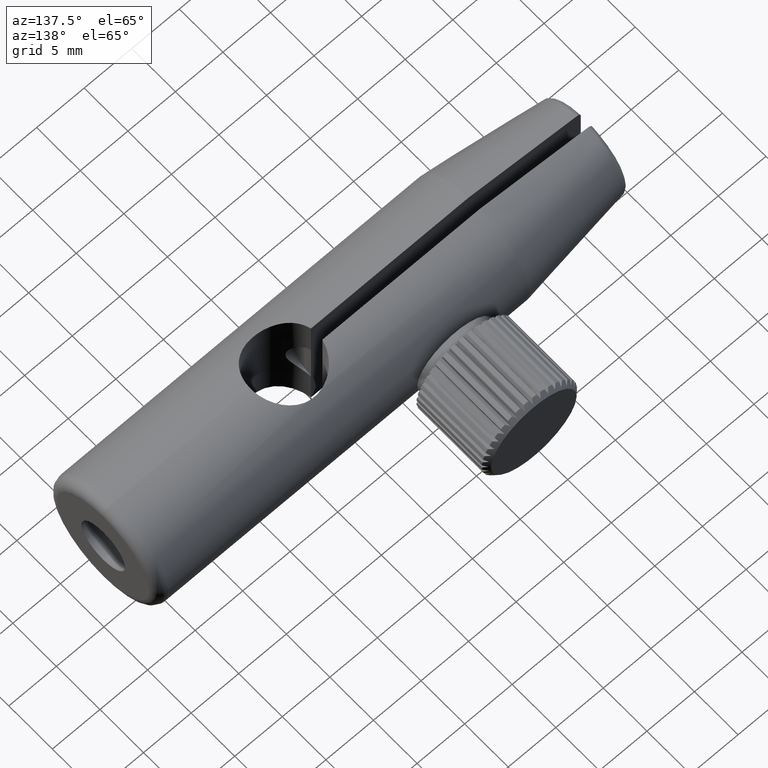
[diagram: clean part render]
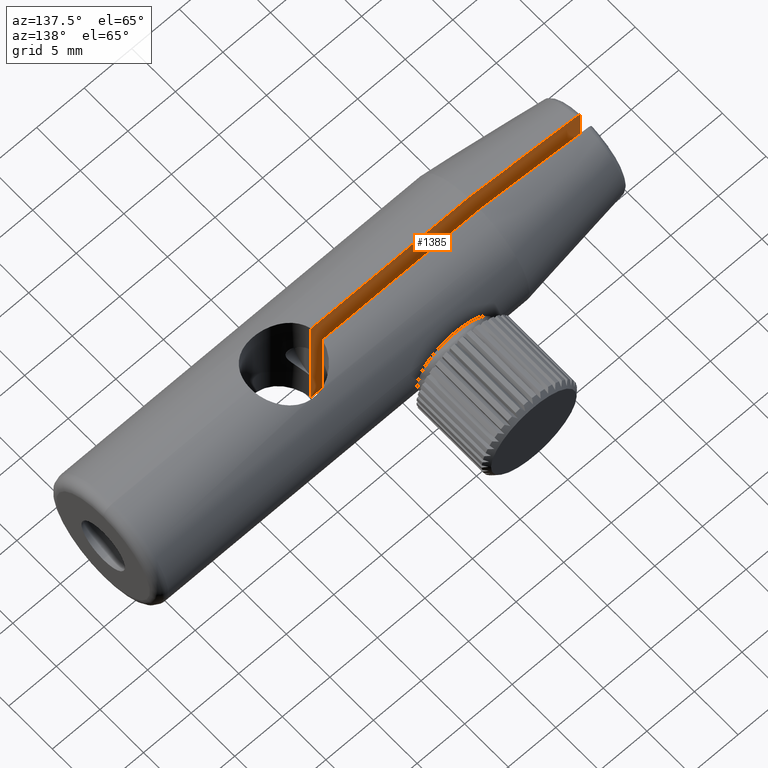
[diagram: same view with one face highlighted and labeled with its STEP entity id]
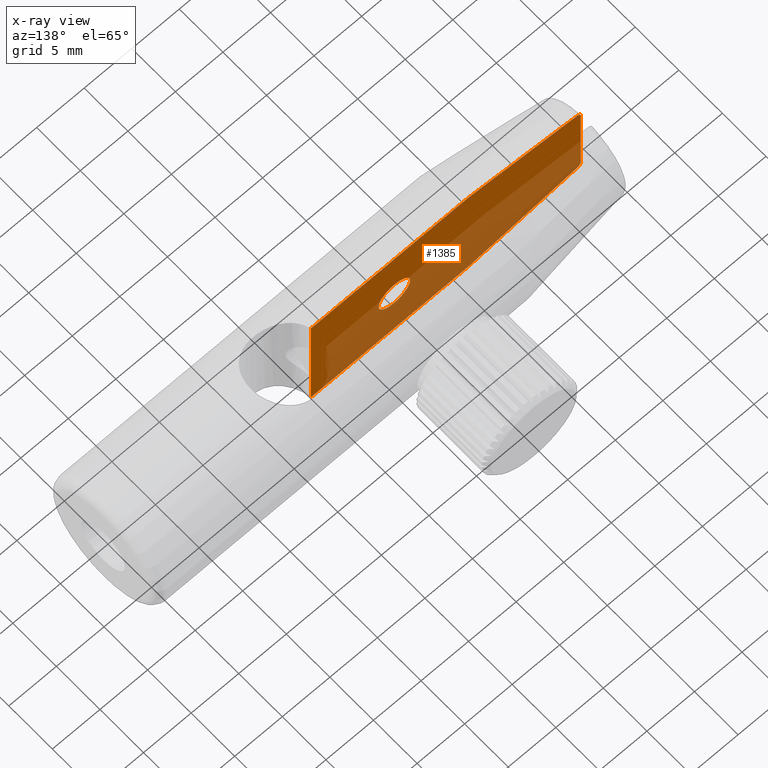
[diagram: x-ray of the same camera — body ghosted, the highlighted face saturated]
A machine part, auxiliary view. The second image highlights one B-rep face of the part: STEP entity #1385.
The next image is the same camera in x-ray: the body ghosted, the highlighted face saturated — about 51% of this face is hidden behind the body in this view.
In plain terms, the highlighted planar face has unit normal (0, -1, 0).
Its self-contained STEP definition (entity closure, byte-faithful):
#147 = EDGE_CURVE ( 'NONE', #3123, #3135, #1275, .T. ) ;
#148 = EDGE_CURVE ( 'NONE', #3135, #3136, #1273, .T. ) ;
#151 = EDGE_CURVE ( 'NONE', #3114, #3138, #1284, .T. ) ;
#152 = EDGE_CURVE ( 'NONE', #3125, #3115, #1280, .T. ) ;
#160 = EDGE_CURVE ( 'NONE', #367, #367, #1296, .T. ) ;
#183 = EDGE_CURVE ( 'NONE', #3123, #3125, #1323, .T. ) ;
#184 = EDGE_CURVE ( 'NONE', #3138, #3137, #1325, .T. ) ;
#191 = EDGE_CURVE ( 'NONE', #3136, #3137, #1331, .T. ) ;
#367 = VERTEX_POINT ( 'NONE', #1721 ) ;
#452 = CARTESIAN_POINT ( 'NONE',  ( -33.16206131108059200, -3.318439813343262200, -4.263962571843185500 ) ) ;
#457 = CARTESIAN_POINT ( 'NONE',  ( -33.16206131108059200, -3.318439813343262200, 4.263962571843185500 ) ) ;
#458 = CARTESIAN_POINT ( 'NONE',  ( -32.72924314756738100, -3.318439813343262200, -4.764553774517430900 ) ) ;
#493 = CARTESIAN_POINT ( 'NONE',  ( -21.36206131108059500, -3.318439813343267100, -6.316644678941503200 ) ) ;
#494 = CARTESIAN_POINT ( 'NONE',  ( -21.36206131108059500, -3.318439813343260400, 6.316644678941502300 ) ) ;
#495 = CARTESIAN_POINT ( 'NONE',  ( -32.72924314756739500, -3.318439813343262200, 4.764553774517806600 ) ) ;
#502 = CARTESIAN_POINT ( 'NONE',  ( -4.801174568884125200, -3.318439813343255100, 2.414021540914655700 ) ) ;
#504 = CARTESIAN_POINT ( 'NONE',  ( -4.801174568884125200, -3.318439813343258200, 6.316644678941503200 ) ) ;
#514 = CARTESIAN_POINT ( 'NONE',  ( -4.802174568884126400, -3.318439813343258700, 2.414021540914658800 ) ) ;
#515 = CARTESIAN_POINT ( 'NONE',  ( -4.802174568884126400, -3.318439813343258700, -2.414021540914658800 ) ) ;
#516 = CARTESIAN_POINT ( 'NONE',  ( -4.801174568884125200, -3.318439813343255100, -2.414021540914655700 ) ) ;
#517 = CARTESIAN_POINT ( 'NONE',  ( -4.801174568884119000, -3.318439813343267100, -6.316644678941503200 ) ) ;
#931 = LINE ( 'NONE', #1592, #934 ) ;
#934 = VECTOR ( 'NONE', #1560, 1000.000000000000000 ) ;
#1091 = ORIENTED_EDGE ( 'NONE', *, *, #160, .F. ) ;
#1092 = ORIENTED_EDGE ( 'NONE', *, *, #148, .T. ) ;
#1093 = ORIENTED_EDGE ( 'NONE', *, *, #191, .T. ) ;
#1094 = ORIENTED_EDGE ( 'NONE', *, *, #184, .F. ) ;
#1095 = ORIENTED_EDGE ( 'NONE', *, *, #151, .F. ) ;
#1096 = ORIENTED_EDGE ( 'NONE', *, *, #3805, .F. ) ;
#1097 = ORIENTED_EDGE ( 'NONE', *, *, #3808, .F. ) ;
#1098 = ORIENTED_EDGE ( 'NONE', *, *, #3807, .F. ) ;
#1099 = ORIENTED_EDGE ( 'NONE', *, *, #3810, .F. ) ;
#1100 = ORIENTED_EDGE ( 'NONE', *, *, #3803, .F. ) ;
#1101 = ORIENTED_EDGE ( 'NONE', *, *, #152, .F. ) ;
#1102 = ORIENTED_EDGE ( 'NONE', *, *, #183, .F. ) ;
#1103 = ORIENTED_EDGE ( 'NONE', *, *, #147, .T. ) ;
#1273 = LINE ( 'NONE', #4352, #1282 ) ;
#1275 = LINE ( 'NONE', #4354, #1279 ) ;
#1279 = VECTOR ( 'NONE', #2039, 1000.000000000000000 ) ;
#1280 = LINE ( 'NONE', #2043, #1288 ) ;
#1282 = VECTOR ( 'NONE', #2042, 1000.000000000000000 ) ;
#1284 = LINE ( 'NONE', #2049, #1286 ) ;
#1286 = VECTOR ( 'NONE', #2050, 1000.000000000000000 ) ;
#1288 = VECTOR ( 'NONE', #2051, 1000.000000000000000 ) ;
#1296 = CIRCLE ( 'NONE', #3816, 1.649999999999988400 ) ;
#1317 = VECTOR ( 'NONE', #3943, 1000.000000000000000 ) ;
#1323 = LINE ( 'NONE', #3942, #1317 ) ;
#1325 = LINE ( 'NONE', #3944, #1327 ) ;
#1327 = VECTOR ( 'NONE', #3945, 1000.000000000000000 ) ;
#1331 = LINE ( 'NONE', #4224, #1335 ) ;
#1335 = VECTOR ( 'NONE', #4226, 1000.000000000000000 ) ;
#1385 = ADVANCED_FACE ( 'NONE', ( #2981, #2979 ), #2869, .F. ) ;
#1560 = DIRECTION ( 'NONE',  ( 0.0000000000000000000, 0.0000000000000000000, -1.000000000000000000 ) ) ;
#1564 = CARTESIAN_POINT ( 'NONE',  ( -21.36206131108059500, -3.318439813343260400, 6.316644678941502300 ) ) ;
#1565 = CARTESIAN_POINT ( 'NONE',  ( -21.77608849222367800, -3.318439813343260400, 6.260208954202624000 ) ) ;
#1569 = CARTESIAN_POINT ( 'NONE',  ( -22.19011461373048600, -3.318439813343260900, 6.203765455055204800 ) ) ;
#1570 = CARTESIAN_POINT ( 'NONE',  ( -22.60413958507822900, -3.318439813343260900, 6.147313521053010100 ) ) ;
#1571 = CARTESIAN_POINT ( 'NONE',  ( -25.51440808381135000, -3.318439813343261300, 5.750501017970540500 ) ) ;
#1572 = CARTESIAN_POINT ( 'NONE',  ( -28.42462310575611500, -3.318439813343261300, 5.353295616333625200 ) ) ;
#1573 = CARTESIAN_POINT ( 'NONE',  ( -31.33473335070587100, -3.318439813343261800, 4.955324185751765100 ) ) ;
#1574 = CARTESIAN_POINT ( 'NONE',  ( -31.79957283896037300, -3.318439813343261800, 4.891755172704021600 ) ) ;
#1575 = CARTESIAN_POINT ( 'NONE',  ( -32.26440955458063800, -3.318439813343262200, 4.828165881003852400 ) ) ;
#1576 = CARTESIAN_POINT ( 'NONE',  ( -32.72924314756739500, -3.318439813343262200, 4.764553774517806600 ) ) ;
#1577 = CARTESIAN_POINT ( 'NONE',  ( -32.72924314756738100, -3.318439813343262200, -4.764553774517430900 ) ) ;
#1578 = CARTESIAN_POINT ( 'NONE',  ( -32.26440955458065900, -3.318439813343262200, -4.828165881003847900 ) ) ;
#1582 = CARTESIAN_POINT ( 'NONE',  ( -31.79957283896038700, -3.318439813343261800, -4.891755172704019800 ) ) ;
#1583 = CARTESIAN_POINT ( 'NONE',  ( -31.33473335070587100, -3.318439813343261800, -4.955324185751765100 ) ) ;
#1584 = CARTESIAN_POINT ( 'NONE',  ( -28.42462310575611500, -3.318439813343261300, -5.353295616333625200 ) ) ;
#1585 = CARTESIAN_POINT ( 'NONE',  ( -25.51440808381135000, -3.318439813343261300, -5.750501017970540500 ) ) ;
#1586 = CARTESIAN_POINT ( 'NONE',  ( -22.60413958507822900, -3.318439813343260900, -6.147313521053010100 ) ) ;
#1587 = CARTESIAN_POINT ( 'NONE',  ( -22.19011461373048600, -3.318439813343260900, -6.203765455055204800 ) ) ;
#1588 = CARTESIAN_POINT ( 'NONE',  ( -21.77608849222367800, -3.318439813343260400, -6.260208954202624000 ) ) ;
#1589 = CARTESIAN_POINT ( 'NONE',  ( -21.36206131108059500, -3.318439813343267100, -6.316644678941503200 ) ) ;
#1590 = CARTESIAN_POINT ( 'NONE',  ( -33.16206131108058500, -3.318439813343262200, -4.384582160113128100 ) ) ;
#1591 = CARTESIAN_POINT ( 'NONE',  ( -33.16206131108059200, -3.318439813343262200, -4.263962571843185500 ) ) ;
#1592 = CARTESIAN_POINT ( 'NONE',  ( -33.16206131108059200, -3.318439813343262200, 0.0000000000000000000 ) ) ;
#1597 = CARTESIAN_POINT ( 'NONE',  ( -33.11861480309558900, -3.318439813343263100, -4.503374737799505000 ) ) ;
#1598 = CARTESIAN_POINT ( 'NONE',  ( -32.96064175738125400, -3.318439813343262200, -4.687150978039025700 ) ) ;
#1599 = CARTESIAN_POINT ( 'NONE',  ( -32.84781346086633400, -3.318439813343262700, -4.748327521704639200 ) ) ;
#1600 = CARTESIAN_POINT ( 'NONE',  ( -32.72924314756738100, -3.318439813343262200, -4.764553774517430900 ) ) ;
#1601 = CARTESIAN_POINT ( 'NONE',  ( -32.72924314756739500, -3.318439813343262200, 4.764553774517806600 ) ) ;
#1602 = CARTESIAN_POINT ( 'NONE',  ( -32.84834889065012200, -3.318439813343262200, 4.748254248565728200 ) ) ;
#1607 = CARTESIAN_POINT ( 'NONE',  ( -32.96121638901510000, -3.318439813343263100, 4.686365421788284600 ) ) ;
#1608 = CARTESIAN_POINT ( 'NONE',  ( -33.11762300824031500, -3.318439813343262200, 4.504645284458199200 ) ) ;
#1609 = CARTESIAN_POINT ( 'NONE',  ( -33.16206131108059200, -3.318439813343262700, 4.383778507876175300 ) ) ;
#1610 = CARTESIAN_POINT ( 'NONE',  ( -33.16206131108059200, -3.318439813343262200, 4.263962571843185500 ) ) ;
#1721 = CARTESIAN_POINT ( 'NONE',  ( -13.56206131108059600, -3.318439813343258700, 1.649999999999988400 ) ) ;
#2039 = DIRECTION ( 'NONE',  ( -1.000000000000000000, 0.0000000000000000000, 0.0000000000000000000 ) ) ;
#2042 = DIRECTION ( 'NONE',  ( 0.0000000000000000000, 0.0000000000000000000, -1.000000000000000000 ) ) ;
#2043 = CARTESIAN_POINT ( 'NONE',  ( -71.55597596690618900, -3.318439813343267100, 6.316644678941503200 ) ) ;
#2049 = CARTESIAN_POINT ( 'NONE',  ( -71.55597596690618900, -3.318439813343267100, -6.316644678941503200 ) ) ;
#2050 = DIRECTION ( 'NONE',  ( 1.000000000000000000, 0.0000000000000000000, 0.0000000000000000000 ) ) ;
#2051 = DIRECTION ( 'NONE',  ( -1.000000000000000000, -0.0000000000000000000, -0.0000000000000000000 ) ) ;
#2517 = EDGE_LOOP ( 'NONE', ( #1092, #1093, #1094, #1095, #1096, #1097, #1098, #1099, #1100, #1101, #1102, #1103 ) ) ;
#2526 = EDGE_LOOP ( 'NONE', ( #1091 ) ) ;
#2752 = VERTEX_POINT ( 'NONE', #457 ) ;
#2753 = VERTEX_POINT ( 'NONE', #458 ) ;
#2754 = VERTEX_POINT ( 'NONE', #452 ) ;
#2863 = CARTESIAN_POINT ( 'NONE',  ( -33.96794848358175000, -3.318439813343262200, -30.00000000000000000 ) ) ;
#2869 = PLANE ( 'NONE',  #3861 ) ;
#2871 = DIRECTION ( 'NONE',  ( 1.263865313740829700E-016, -1.000000000000000000, 0.0000000000000000000 ) ) ;
#2872 = DIRECTION ( 'NONE',  ( 1.000000000000000000, 1.263865313740829700E-016, 0.0000000000000000000 ) ) ;
#2979 = FACE_OUTER_BOUND ( 'NONE', #2517, .T. ) ;
#2981 = FACE_BOUND ( 'NONE', #2526, .T. ) ;
#3114 = VERTEX_POINT ( 'NONE', #493 ) ;
#3115 = VERTEX_POINT ( 'NONE', #494 ) ;
#3116 = VERTEX_POINT ( 'NONE', #495 ) ;
#3123 = VERTEX_POINT ( 'NONE', #502 ) ;
#3125 = VERTEX_POINT ( 'NONE', #504 ) ;
#3135 = VERTEX_POINT ( 'NONE', #514 ) ;
#3136 = VERTEX_POINT ( 'NONE', #515 ) ;
#3137 = VERTEX_POINT ( 'NONE', #516 ) ;
#3138 = VERTEX_POINT ( 'NONE', #517 ) ;
#3454 = B_SPLINE_CURVE_WITH_KNOTS ( 'NONE', 3,
 ( #1564, #1565, #1569, #1570, #1571, #1572, #1573, #1574, #1575, #1576 ),
 .UNSPECIFIED., .F., .F.,
 ( 4, 3, 3, 4 ),
 ( 0.03014708578147455200, 0.03140065323254082700, 0.04021224227380732600, 0.04161974030820570600 ),
 .UNSPECIFIED. ) ;
#3455 = B_SPLINE_CURVE_WITH_KNOTS ( 'NONE', 3,
 ( #1577, #1578, #1582, #1583, #1584, #1585, #1586, #1587, #1588, #1589 ),
 .UNSPECIFIED., .F., .F.,
 ( 4, 3, 3, 4 ),
 ( 0.007404091641437494100, 0.008811589685154224900, 0.01762317878475769600, 0.01887674624412319400 ),
 .UNSPECIFIED. ) ;
#3456 = B_SPLINE_CURVE_WITH_KNOTS ( 'NONE', 3,
 ( #1591, #1590, #1597, #1598, #1599, #1600 ),
 .UNSPECIFIED., .F., .F.,
 ( 4, 2, 4 ),
 ( 0.002672750175576420400, 0.003031796742791103600, 0.003390843310005786400 ),
 .UNSPECIFIED. ) ;
#3457 = B_SPLINE_CURVE_WITH_KNOTS ( 'NONE', 3,
 ( #1601, #1602, #1607, #1608, #1609, #1610 ),
 .UNSPECIFIED., .F., .F.,
 ( 4, 2, 4 ),
 ( 0.001895573248214810300, 0.002255042070053460900, 0.002614510891892111800 ),
 .UNSPECIFIED. ) ;
#3570 = CARTESIAN_POINT ( 'NONE',  ( -13.56206131108059600, -3.318439813343258700, 0.0000000000000000000 ) ) ;
#3571 = DIRECTION ( 'NONE',  ( -0.0000000000000000000, 1.000000000000000000, -0.0000000000000000000 ) ) ;
#3572 = DIRECTION ( 'NONE',  ( 0.0000000000000000000, 0.0000000000000000000, 1.000000000000000000 ) ) ;
#3803 = EDGE_CURVE ( 'NONE', #3115, #3116, #3454, .T. ) ;
#3805 = EDGE_CURVE ( 'NONE', #2753, #3114, #3455, .T. ) ;
#3807 = EDGE_CURVE ( 'NONE', #2752, #2754, #931, .T. ) ;
#3808 = EDGE_CURVE ( 'NONE', #2754, #2753, #3456, .T. ) ;
#3810 = EDGE_CURVE ( 'NONE', #3116, #2752, #3457, .T. ) ;
#3816 = AXIS2_PLACEMENT_3D ( 'NONE', #3570, #3571, #3572 ) ;
#3861 = AXIS2_PLACEMENT_3D ( 'NONE', #2863, #2871, #2872 ) ;
#3942 = CARTESIAN_POINT ( 'NONE',  ( -4.801174568884125200, -3.318439813343258200, -30.00000000000000000 ) ) ;
#3943 = DIRECTION ( 'NONE',  ( -0.0000000000000000000, -0.0000000000000000000, 1.000000000000000000 ) ) ;
#3944 = CARTESIAN_POINT ( 'NONE',  ( -4.801174568884125200, -3.318439813343258200, -30.00000000000000000 ) ) ;
#3945 = DIRECTION ( 'NONE',  ( -0.0000000000000000000, -0.0000000000000000000, 1.000000000000000000 ) ) ;
#4224 = CARTESIAN_POINT ( 'NONE',  ( 17.63793868891940500, -3.318439813343256000, -2.414021540914655700 ) ) ;
#4226 = DIRECTION ( 'NONE',  ( 1.000000000000000000, -0.0000000000000000000, -0.0000000000000000000 ) ) ;
#4352 = CARTESIAN_POINT ( 'NONE',  ( -4.802174568884126400, -3.318439813343258700, -30.00000000000000000 ) ) ;
#4354 = CARTESIAN_POINT ( 'NONE',  ( 17.63793868891940500, -3.318439813343256000, 2.414021540914655700 ) ) ;